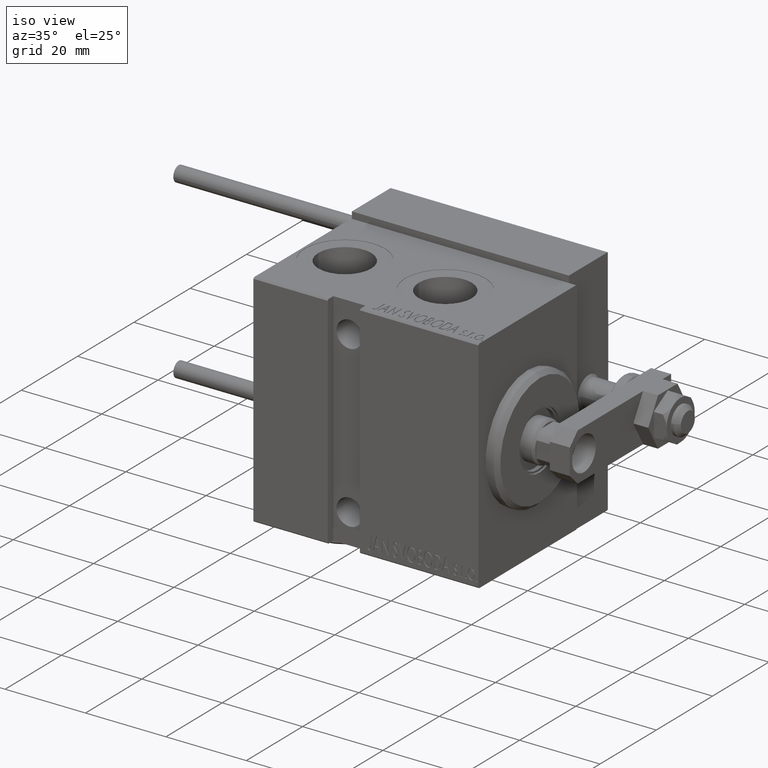
[diagram: clean part render]
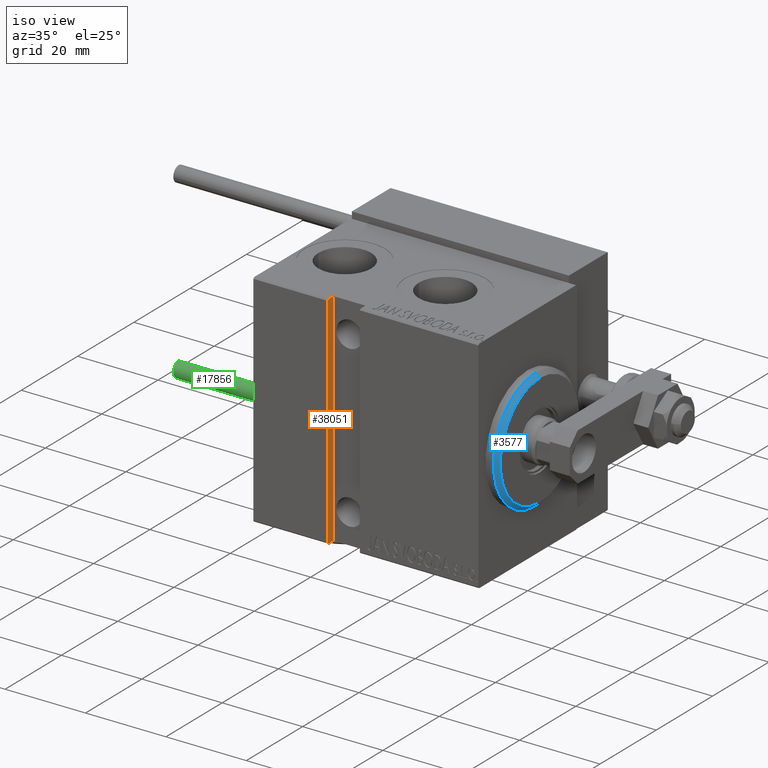
[diagram: same view with three faces highlighted in distinct colors, each labeled with its STEP entity id]
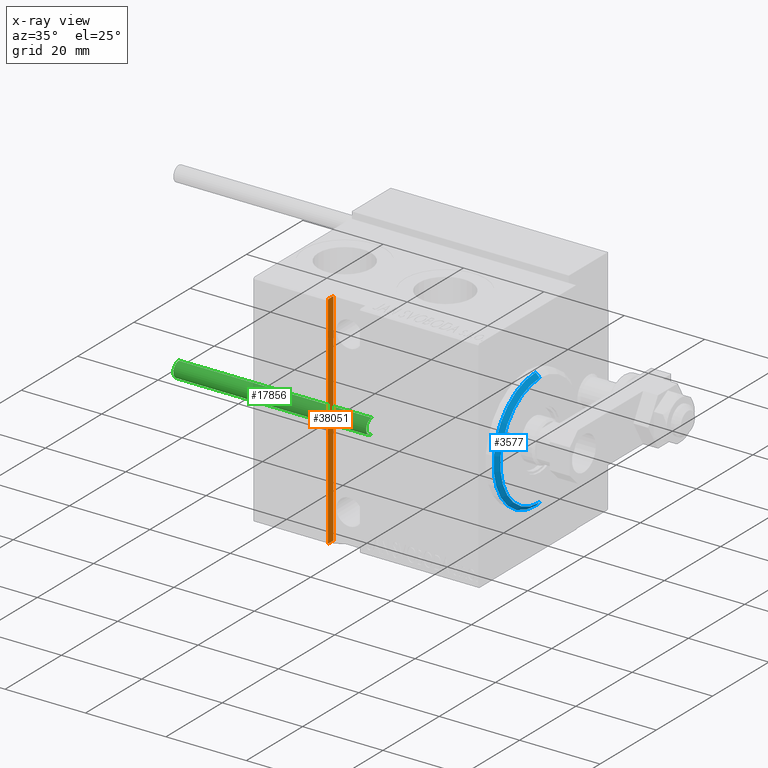
[diagram: x-ray of the same camera — body ghosted, the three highlighted faces saturated]
A machine part, iso view with three faces highlighted in distinct colors.
The next image is the same camera in x-ray (body ghosted, the three faces saturated) — at least one of them is partly hidden behind the body in this view.
Their STEP definitions:

[orange] entity #38051 — the highlighted planar face has unit normal (-1, 0, -0).
#895 = CARTESIAN_POINT ( 'NONE',  ( 37.50000000000000000, 15.50000000000000178, 27.50000000000002132 ) ) ;
#1245 = EDGE_LOOP ( 'NONE', ( #28196, #39086, #20665, #32776, #33291, #14509 ) ) ;
#1355 = CARTESIAN_POINT ( 'NONE',  ( 37.50000000000000000, 17.20000000000000284, 27.50000000000002132 ) ) ;
#3446 = EDGE_CURVE ( 'NONE', #30174, #38086, #32259, .T. ) ;
#3749 = CARTESIAN_POINT ( 'NONE',  ( 37.49999999999999289, 17.50000000000000000, -27.19999999999999574 ) ) ;
#5543 = AXIS2_PLACEMENT_3D ( 'NONE', #46839, #11398, #39080 ) ;
#8677 = DIRECTION ( 'NONE',  ( -1.261617073437677259E-16, -0.000000000000000000, -1.000000000000000000 ) ) ;
#8696 = EDGE_CURVE ( 'NONE', #28331, #11949, #19856, .T. ) ;
#11070 = VERTEX_POINT ( 'NONE', #1355 ) ;
#11398 = DIRECTION ( 'NONE',  ( 1.000000000000000000, 0.000000000000000000, -1.261617073437677259E-16 ) ) ;
#11753 = LINE ( 'NONE', #43038, #19765 ) ;
#11949 = VERTEX_POINT ( 'NONE', #46449 ) ;
#14509 = ORIENTED_EDGE ( 'NONE', *, *, #26348, .T. ) ;
#17113 = VECTOR ( 'NONE', #47806, 999.9999999999998863 ) ;
#19765 = VECTOR ( 'NONE', #22636, 1000.000000000000000 ) ;
#19856 = LINE ( 'NONE', #32288, #21412 ) ;
#20136 = CARTESIAN_POINT ( 'NONE',  ( 37.50000000000000000, 17.20000000000000284, 27.50000000000000000 ) ) ;
#20596 = CARTESIAN_POINT ( 'NONE',  ( 37.49999999999999289, 15.50000000000000178, -27.50000000000000711 ) ) ;
#20665 = ORIENTED_EDGE ( 'NONE', *, *, #23299, .F. ) ;
#21412 = VECTOR ( 'NONE', #35624, 1000.000000000000000 ) ;
#22636 = DIRECTION ( 'NONE',  ( -0.000000000000000000, 1.000000000000000000, -0.000000000000000000 ) ) ;
#23299 = EDGE_CURVE ( 'NONE', #38086, #11949, #29601, .T. ) ;
#26348 = EDGE_CURVE ( 'NONE', #11070, #27499, #39785, .T. ) ;
#26790 = CARTESIAN_POINT ( 'NONE',  ( 37.49999999999999289, 17.50000000000000000, -27.50000000000000711 ) ) ;
#27499 = VERTEX_POINT ( 'NONE', #30451 ) ;
#27780 = VECTOR ( 'NONE', #8677, 1000.000000000000000 ) ;
#28196 = ORIENTED_EDGE ( 'NONE', *, *, #49161, .T. ) ;
#28331 = VERTEX_POINT ( 'NONE', #3749 ) ;
#29601 = LINE ( 'NONE', #49460, #40025 ) ;
#30174 = VERTEX_POINT ( 'NONE', #895 ) ;
#30451 = CARTESIAN_POINT ( 'NONE',  ( 37.50000000000000000, 17.50000000000000000, 27.20000000000000639 ) ) ;
#31090 = PLANE ( 'NONE',  #5543 ) ;
#32259 = LINE ( 'NONE', #20596, #27780 ) ;
#32288 = CARTESIAN_POINT ( 'NONE',  ( 37.49999999999999289, 17.50000000000000355, -27.19999999999999574 ) ) ;
#32776 = ORIENTED_EDGE ( 'NONE', *, *, #3446, .F. ) ;
#33291 = ORIENTED_EDGE ( 'NONE', *, *, #45925, .T. ) ;
#34552 = DIRECTION ( 'NONE',  ( -1.261617073437677259E-16, -0.000000000000000000, -1.000000000000000000 ) ) ;
#35624 = DIRECTION ( 'NONE',  ( -8.920979878885184166E-17, -0.7071067811865393571, -0.7071067811865556774 ) ) ;
#38051 = ADVANCED_FACE ( 'NONE', ( #38823 ), #31090, .F. ) ;
#38086 = VERTEX_POINT ( 'NONE', #40117 ) ;
#38823 = FACE_OUTER_BOUND ( 'NONE', #1245, .T. ) ;
#38864 = VECTOR ( 'NONE', #34552, 1000.000000000000000 ) ;
#39080 = DIRECTION ( 'NONE',  ( -1.261617073437677259E-16, 0.000000000000000000, -1.000000000000000000 ) ) ;
#39086 = ORIENTED_EDGE ( 'NONE', *, *, #8696, .T. ) ;
#39785 = LINE ( 'NONE', #20136, #17113 ) ;
#40025 = VECTOR ( 'NONE', #41450, 1000.000000000000000 ) ;
#40117 = CARTESIAN_POINT ( 'NONE',  ( 37.50000000000000000, 15.50000000000000355, -27.50000000000000355 ) ) ;
#41450 = DIRECTION ( 'NONE',  ( -0.000000000000000000, 1.000000000000000000, -0.000000000000000000 ) ) ;
#42299 = LINE ( 'NONE', #26790, #38864 ) ;
#43038 = CARTESIAN_POINT ( 'NONE',  ( 37.50000000000000000, 15.50000000000000178, 27.50000000000002132 ) ) ;
#45925 = EDGE_CURVE ( 'NONE', #30174, #11070, #11753, .T. ) ;
#46449 = CARTESIAN_POINT ( 'NONE',  ( 37.49999999999999289, 17.20000000000000284, -27.50000000000000711 ) ) ;
#46839 = CARTESIAN_POINT ( 'NONE',  ( 37.49999999999999289, 15.50000000000000178, -27.50000000000000711 ) ) ;
#47806 = DIRECTION ( 'NONE',  ( -8.920979878885031324E-17, 0.7071067811865515695, -0.7071067811865435759 ) ) ;
#49161 = EDGE_CURVE ( 'NONE', #27499, #28331, #42299, .T. ) ;
#49460 = CARTESIAN_POINT ( 'NONE',  ( 37.49999999999999289, 15.50000000000000178, -27.50000000000000711 ) ) ;

[blue] entity #3577 — the highlighted conical surface has half-angle 45 deg.
#103 = AXIS2_PLACEMENT_3D ( 'NONE', #3810, #15992, #39008 ) ;
#3577 = ADVANCED_FACE ( 'NONE', ( #21855 ), #46792, .T. ) ;
#3810 = CARTESIAN_POINT ( 'NONE',  ( 3.000000000000000000, 0.000000000000000000, 0.000000000000000000 ) ) ;
#4809 = CIRCLE ( 'NONE', #40349, 15.00000000000000000 ) ;
#7088 = ORIENTED_EDGE ( 'NONE', *, *, #36566, .T. ) ;
#8242 = EDGE_CURVE ( 'NONE', #21874, #39058, #4809, .T. ) ;
#9001 = CARTESIAN_POINT ( 'NONE',  ( 3.000000000000000000, 0.000000000000000000, 13.99999999999998934 ) ) ;
#9760 = DIRECTION ( 'NONE',  ( -0.7071067811865482389, 0.000000000000000000, 0.7071067811865469066 ) ) ;
#13261 = EDGE_LOOP ( 'NONE', ( #38989, #13605, #7088, #25396 ) ) ;
#13596 = VERTEX_POINT ( 'NONE', #30487 ) ;
#13605 = ORIENTED_EDGE ( 'NONE', *, *, #15871, .F. ) ;
#14326 = CARTESIAN_POINT ( 'NONE',  ( 3.000000000000000000, 0.000000000000000000, 0.000000000000000000 ) ) ;
#14550 = AXIS2_PLACEMENT_3D ( 'NONE', #14326, #30144, #29145 ) ;
#15871 = EDGE_CURVE ( 'NONE', #13596, #39918, #20764, .T. ) ;
#15992 = DIRECTION ( 'NONE',  ( 1.000000000000000000, -0.000000000000000000, 0.000000000000000000 ) ) ;
#20764 = CIRCLE ( 'NONE', #103, 13.99999999999998934 ) ;
#21855 = FACE_OUTER_BOUND ( 'NONE', #13261, .T. ) ;
#21874 = VERTEX_POINT ( 'NONE', #26657 ) ;
#24370 = EDGE_CURVE ( 'NONE', #39918, #21874, #33527, .T. ) ;
#25396 = ORIENTED_EDGE ( 'NONE', *, *, #8242, .F. ) ;
#25526 = DIRECTION ( 'NONE',  ( -0.7071067811865482389, 8.659560562354926695E-17, -0.7071067811865469066 ) ) ;
#26657 = CARTESIAN_POINT ( 'NONE',  ( 1.999999999999988676, 1.836970198721029589E-15, -15.00000000000000000 ) ) ;
#27427 = DIRECTION ( 'NONE',  ( 0.000000000000000000, 0.000000000000000000, -1.000000000000000000 ) ) ;
#29145 = DIRECTION ( 'NONE',  ( 0.000000000000000000, 0.000000000000000000, 1.000000000000000000 ) ) ;
#30144 = DIRECTION ( 'NONE',  ( -1.000000000000000000, 0.000000000000000000, 0.000000000000000000 ) ) ;
#30487 = CARTESIAN_POINT ( 'NONE',  ( 3.000000000000000000, 0.000000000000000000, 13.99999999999998934 ) ) ;
#33320 = LINE ( 'NONE', #9001, #50094 ) ;
#33527 = LINE ( 'NONE', #49277, #34248 ) ;
#34020 = CARTESIAN_POINT ( 'NONE',  ( 3.000000000000000000, 1.775737858763661226E-15, -13.99999999999998934 ) ) ;
#34248 = VECTOR ( 'NONE', #25526, 999.9999999999998863 ) ;
#36566 = EDGE_CURVE ( 'NONE', #13596, #39058, #33320, .T. ) ;
#36750 = CARTESIAN_POINT ( 'NONE',  ( 1.999999999999988676, 0.000000000000000000, 15.00000000000000000 ) ) ;
#38989 = ORIENTED_EDGE ( 'NONE', *, *, #24370, .F. ) ;
#39008 = DIRECTION ( 'NONE',  ( 0.000000000000000000, 0.000000000000000000, -1.000000000000000000 ) ) ;
#39058 = VERTEX_POINT ( 'NONE', #36750 ) ;
#39918 = VERTEX_POINT ( 'NONE', #34020 ) ;
#40349 = AXIS2_PLACEMENT_3D ( 'NONE', #46550, #50922, #27427 ) ;
#46550 = CARTESIAN_POINT ( 'NONE',  ( 1.999999999999988676, 0.000000000000000000, 0.000000000000000000 ) ) ;
#46792 = CONICAL_SURFACE ( 'NONE', #14550, 13.99999999999998934, 0.7853981633974473908 ) ;
#49277 = CARTESIAN_POINT ( 'NONE',  ( 3.000000000000000000, 1.714505518806293257E-15, -13.99999999999998934 ) ) ;
#50094 = VECTOR ( 'NONE', #9760, 999.9999999999998863 ) ;
#50922 = DIRECTION ( 'NONE',  ( -1.000000000000000000, 0.000000000000000000, 0.000000000000000000 ) ) ;

[green] entity #17856 — the highlighted cylindrical surface (edge-blend (fillet) strip) has radius 1.9 mm, axis along (1, -0, 0).
#2388 = DIRECTION ( 'NONE',  ( -0.000000000000000000, -0.000000000000000000, -1.000000000000000000 ) ) ;
#3125 = EDGE_LOOP ( 'NONE', ( #45888, #43175, #11371, #21080 ) ) ;
#5465 = CIRCLE ( 'NONE', #21983, 1.899999999999999467 ) ;
#6633 = CARTESIAN_POINT ( 'NONE',  ( -1.899999999999999467, 0.000000000000000000, 48.00000000000000000 ) ) ;
#7190 = DIRECTION ( 'NONE',  ( -0.000000000000000000, -0.000000000000000000, -1.000000000000000000 ) ) ;
#7766 = AXIS2_PLACEMENT_3D ( 'NONE', #33783, #49535, #44899 ) ;
#11073 = CYLINDRICAL_SURFACE ( 'NONE', #43100, 1.899999999999999467 ) ;
#11371 = ORIENTED_EDGE ( 'NONE', *, *, #39483, .T. ) ;
#12324 = VERTEX_POINT ( 'NONE', #39094 ) ;
#13907 = DIRECTION ( 'NONE',  ( -0.000000000000000000, -0.000000000000000000, -1.000000000000000000 ) ) ;
#15593 = DIRECTION ( 'NONE',  ( 1.000000000000000000, 0.000000000000000000, 0.000000000000000000 ) ) ;
#17192 = CARTESIAN_POINT ( 'NONE',  ( 1.899999999999999467, 2.326828918379970872E-16, 0.000000000000000000 ) ) ;
#17856 = ADVANCED_FACE ( 'NONE', ( #33628 ), #11073, .T. ) ;
#18093 = DIRECTION ( 'NONE',  ( -1.000000000000000000, 0.000000000000000000, 0.000000000000000000 ) ) ;
#19424 = VERTEX_POINT ( 'NONE', #20545 ) ;
#20545 = CARTESIAN_POINT ( 'NONE',  ( -1.899999999999999467, 0.000000000000000000, 0.000000000000000000 ) ) ;
#21080 = ORIENTED_EDGE ( 'NONE', *, *, #31434, .T. ) ;
#21382 = EDGE_CURVE ( 'NONE', #12324, #25044, #37504, .T. ) ;
#21983 = AXIS2_PLACEMENT_3D ( 'NONE', #26479, #42486, #15593 ) ;
#22608 = VERTEX_POINT ( 'NONE', #17192 ) ;
#25044 = VERTEX_POINT ( 'NONE', #35358 ) ;
#26479 = CARTESIAN_POINT ( 'NONE',  ( 0.000000000000000000, 0.000000000000000000, 0.000000000000000000 ) ) ;
#27116 = VECTOR ( 'NONE', #2388, 1000.000000000000000 ) ;
#28613 = VECTOR ( 'NONE', #13907, 1000.000000000000000 ) ;
#29855 = CARTESIAN_POINT ( 'NONE',  ( 1.899999999999999467, 2.326828918379970872E-16, 48.00000000000000000 ) ) ;
#31434 = EDGE_CURVE ( 'NONE', #19424, #22608, #5465, .T. ) ;
#33628 = FACE_OUTER_BOUND ( 'NONE', #3125, .T. ) ;
#33783 = CARTESIAN_POINT ( 'NONE',  ( 0.000000000000000000, 0.000000000000000000, 48.00000000000000000 ) ) ;
#35358 = CARTESIAN_POINT ( 'NONE',  ( 1.899999999999999467, 2.326828918379970872E-16, 48.00000000000000000 ) ) ;
#37504 = CIRCLE ( 'NONE', #7766, 1.899999999999999467 ) ;
#37833 = LINE ( 'NONE', #29855, #27116 ) ;
#39094 = CARTESIAN_POINT ( 'NONE',  ( -1.899999999999999467, 0.000000000000000000, 48.00000000000000000 ) ) ;
#39483 = EDGE_CURVE ( 'NONE', #12324, #19424, #49338, .T. ) ;
#42486 = DIRECTION ( 'NONE',  ( 0.000000000000000000, 0.000000000000000000, 1.000000000000000000 ) ) ;
#42624 = CARTESIAN_POINT ( 'NONE',  ( 0.000000000000000000, 0.000000000000000000, 48.00000000000000000 ) ) ;
#42734 = EDGE_CURVE ( 'NONE', #25044, #22608, #37833, .T. ) ;
#43100 = AXIS2_PLACEMENT_3D ( 'NONE', #42624, #7190, #18093 ) ;
#43175 = ORIENTED_EDGE ( 'NONE', *, *, #21382, .F. ) ;
#44899 = DIRECTION ( 'NONE',  ( 1.000000000000000000, 0.000000000000000000, 0.000000000000000000 ) ) ;
#45888 = ORIENTED_EDGE ( 'NONE', *, *, #42734, .F. ) ;
#49338 = LINE ( 'NONE', #6633, #28613 ) ;
#49535 = DIRECTION ( 'NONE',  ( 0.000000000000000000, 0.000000000000000000, 1.000000000000000000 ) ) ;